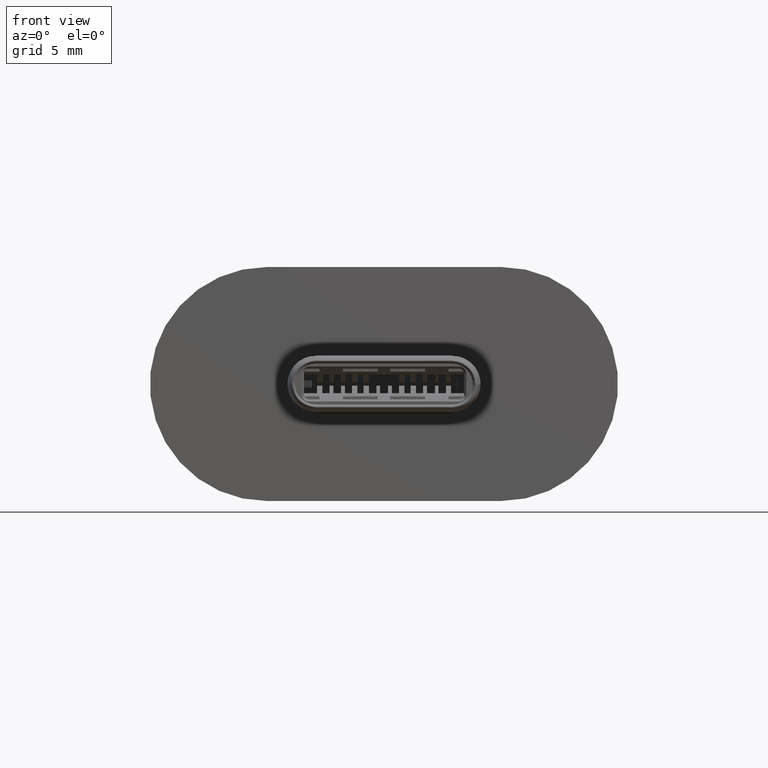
[diagram: clean part render]
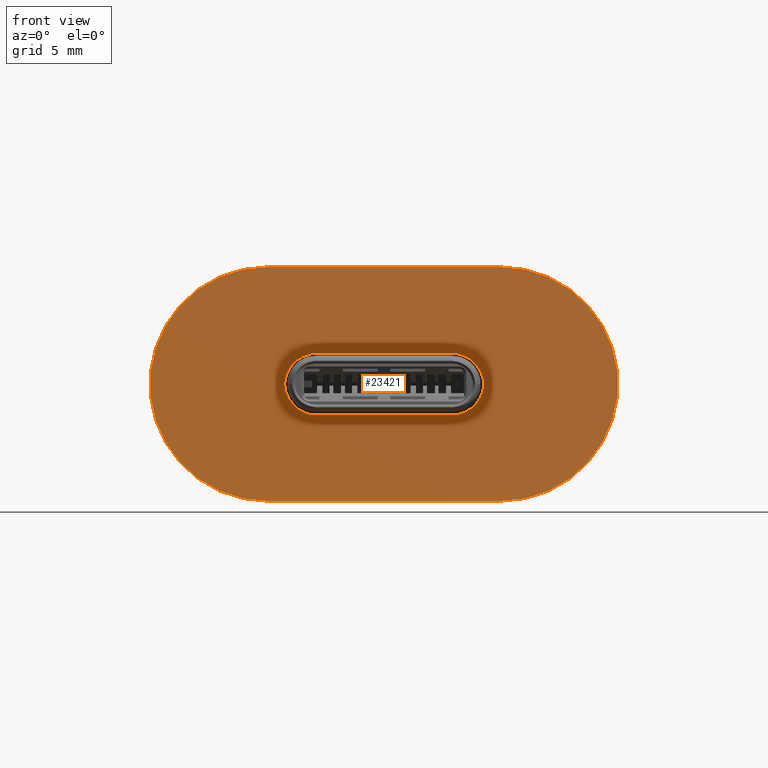
[diagram: same view with one face highlighted and labeled with its STEP entity id]
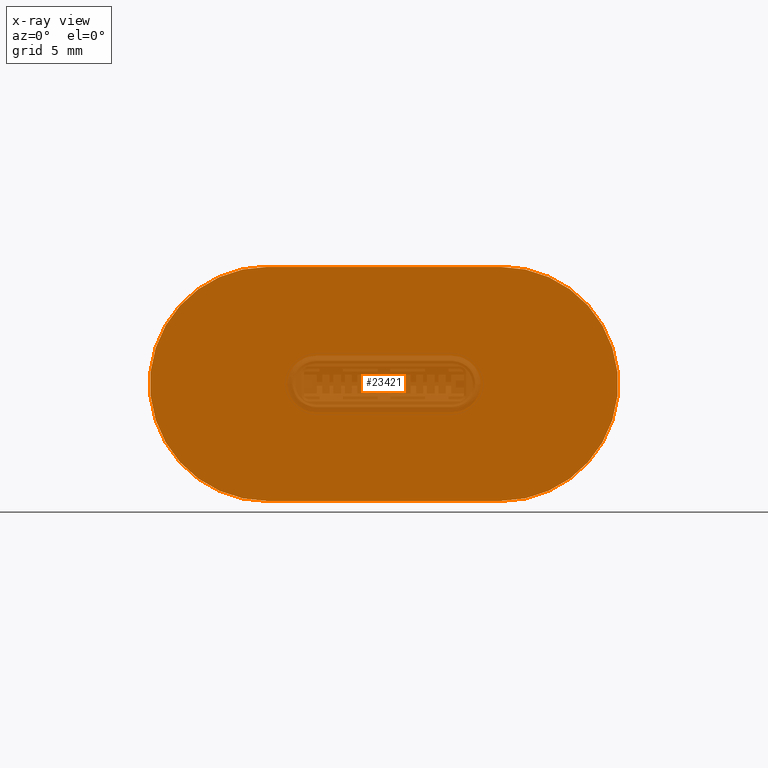
[diagram: x-ray of the same camera — body ghosted, the highlighted face saturated]
A machine part, front view. The second image highlights one B-rep face of the part: STEP entity #23421.
The next image is the same camera in x-ray: the body ghosted, the highlighted face saturated — about 10% of this face is hidden behind the body in this view.
In plain terms, the highlighted planar face has unit normal (-0, -1, -0).
Its self-contained STEP definition (entity closure, byte-faithful):
#1503=CIRCLE('',#24966,5.);
#1504=CIRCLE('',#24969,5.);
#1839=FACE_OUTER_BOUND('',#3259,.T.);
#3259=EDGE_LOOP('',(#15582,#15583,#15584,#15585));
#4713=LINE('',#32189,#7278);
#4716=LINE('',#32202,#7281);
#7278=VECTOR('',#26531,10.);
#7281=VECTOR('',#26546,10.);
#9837=VERTEX_POINT('',#32183);
#9839=VERTEX_POINT('',#32187);
#9842=VERTEX_POINT('',#32197);
#9843=VERTEX_POINT('',#32201);
#12107=EDGE_CURVE('',#9839,#9837,#4713,.T.);
#12111=EDGE_CURVE('',#9837,#9842,#1503,.T.);
#12113=EDGE_CURVE('',#9842,#9843,#4716,.T.);
#12115=EDGE_CURVE('',#9843,#9839,#1504,.T.);
#15582=ORIENTED_EDGE('',*,*,#12111,.F.);
#15583=ORIENTED_EDGE('',*,*,#12107,.F.);
#15584=ORIENTED_EDGE('',*,*,#12115,.F.);
#15585=ORIENTED_EDGE('',*,*,#12113,.F.);
#22438=PLANE('',#24970);
#23421=ADVANCED_FACE('',(#1839),#22438,.T.);
#24966=AXIS2_PLACEMENT_3D('',#32198,#26541,#26542);
#24969=AXIS2_PLACEMENT_3D('',#32205,#26550,#26551);
#24970=AXIS2_PLACEMENT_3D('',#32206,#26552,#26553);
#26531=DIRECTION('',(-1.,0.,-1.66533453693773E-16));
#26541=DIRECTION('center_axis',(1.66533453693773E-16,-1.38777878078143E-16,
-1.));
#26542=DIRECTION('ref_axis',(-0.707106781186547,0.707106781186547,0.));
#26546=DIRECTION('',(1.,0.,1.66533453693773E-16));
#26550=DIRECTION('center_axis',(1.66533453693773E-16,-1.38777878078143E-16,
-1.));
#26551=DIRECTION('ref_axis',(0.707106781186547,-0.707106781186547,0.));
#26552=DIRECTION('center_axis',(-1.66533453693773E-16,1.38777878078143E-16,
1.));
#26553=DIRECTION('ref_axis',(1.,0.,1.66533453693773E-16));
#32183=CARTESIAN_POINT('',(-4.99999999999218,-5.00000000000001,-8.87268976711646));
#32187=CARTESIAN_POINT('',(5.00000000000782,-5.00000000000001,-8.87268976711646));
#32189=CARTESIAN_POINT('',(-9.99999999999218,-5.00000000000001,-8.87268976711646));
#32197=CARTESIAN_POINT('',(-4.99999999999218,4.99999999999999,-8.87268976711646));
#32198=CARTESIAN_POINT('Origin',(-4.99999999999218,-1.18754126799654E-14,
-8.87268976711646));
#32201=CARTESIAN_POINT('',(5.00000000000782,4.99999999999999,-8.87268976711646));
#32202=CARTESIAN_POINT('',(-9.99999999999218,4.99999999999999,-8.87268976711647));
#32205=CARTESIAN_POINT('Origin',(5.00000000000782,-1.07651896553402E-14,
-8.87268976711646));
#32206=CARTESIAN_POINT('Origin',(-9.99999999999218,-1.11022302462516E-14,
-8.87268976711646));